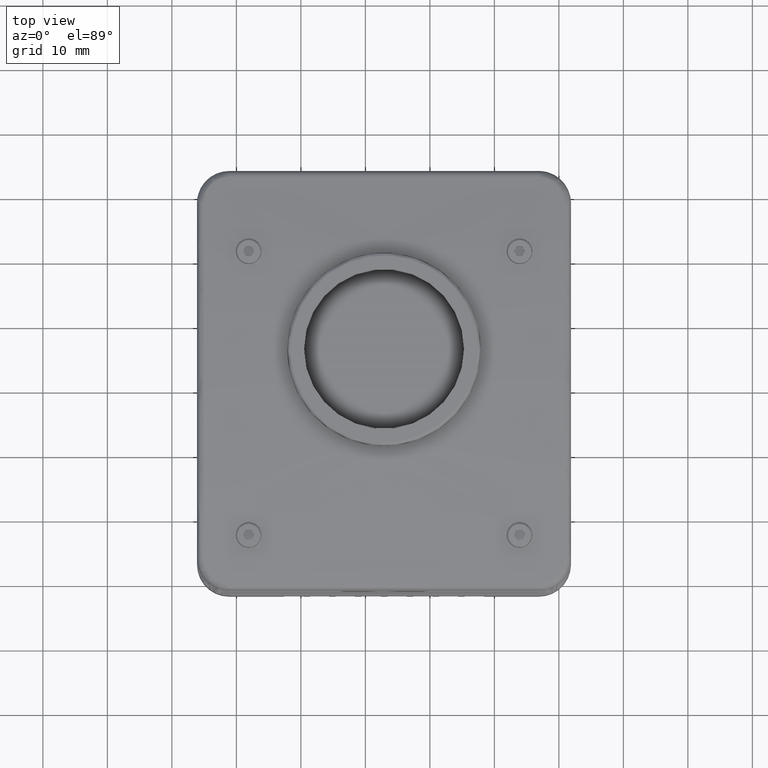
[diagram: clean part render]
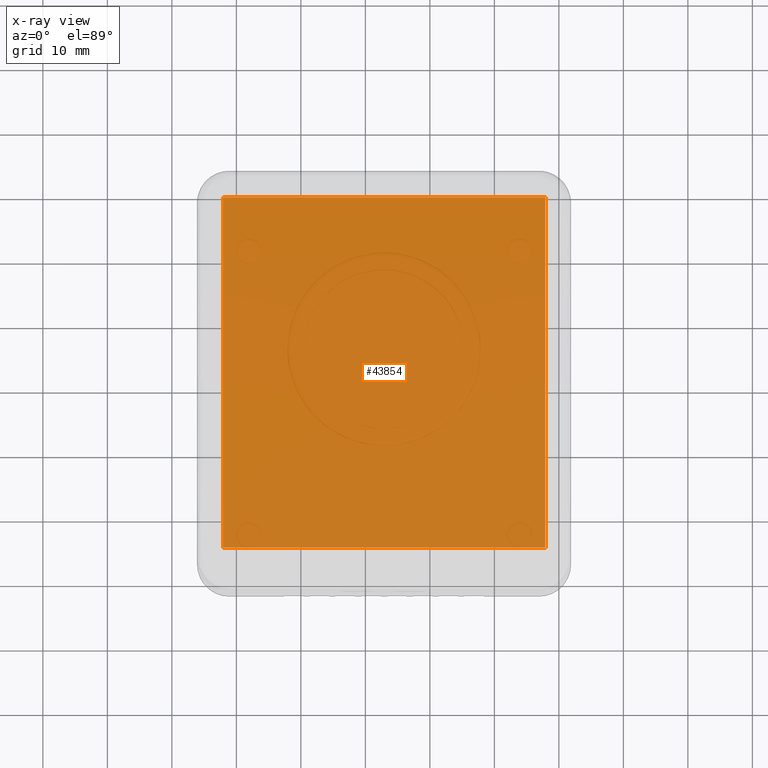
[diagram: x-ray — body ghosted, one internal face saturated and labeled with its STEP entity id]
A machine part, top view, then the same camera in x-ray: the body is ghosted and one INTERNAL B-rep face — a face not visible from any outside direction — is saturated and labeled: STEP entity #43854.
In plain terms, the highlighted planar face has unit normal (0, 0, -1).
Its self-contained STEP definition (entity closure, byte-faithful):
#1087 = DIRECTION ( 'NONE',  ( -1.000000000000000000, 0.000000000000000000, 0.000000000000000000 ) ) ;
#4782 = VERTEX_POINT ( 'NONE', #32310 ) ;
#4921 = VECTOR ( 'NONE', #30626, 1000.000000000000000 ) ;
#4922 = VERTEX_POINT ( 'NONE', #41691 ) ;
#5357 = ORIENTED_EDGE ( 'NONE', *, *, #14214, .F. ) ;
#10554 = EDGE_CURVE ( 'NONE', #17549, #46997, #54922, .T. ) ;
#14214 = EDGE_CURVE ( 'NONE', #46997, #4922, #45485, .T. ) ;
#17492 = LINE ( 'NONE', #72312, #4921 ) ;
#17549 = VERTEX_POINT ( 'NONE', #56045 ) ;
#18968 = FACE_OUTER_BOUND ( 'NONE', #68915, .T. ) ;
#19739 = PLANE ( 'NONE',  #28073 ) ;
#27914 = ORIENTED_EDGE ( 'NONE', *, *, #73979, .F. ) ;
#28073 = AXIS2_PLACEMENT_3D ( 'NONE', #37241, #55510, #1087 ) ;
#30626 = DIRECTION ( 'NONE',  ( 0.000000000000000000, -1.000000000000000000, 0.000000000000000000 ) ) ;
#31006 = LINE ( 'NONE', #32555, #42981 ) ;
#32310 = CARTESIAN_POINT ( 'NONE',  ( 17.88553785810800179, 29.54657936056899814, -10.49999999999999822 ) ) ;
#32555 = CARTESIAN_POINT ( 'NONE',  ( -7.114462141891999991, 29.54657936056899814, -10.49999999999999822 ) ) ;
#37241 = CARTESIAN_POINT ( 'NONE',  ( -7.114462141891999991, 0.7465793605690000945, -10.49999999999999822 ) ) ;
#41034 = CARTESIAN_POINT ( 'NONE',  ( -7.114462141891999991, -24.75342063943099902, -10.49999999999999822 ) ) ;
#41691 = CARTESIAN_POINT ( 'NONE',  ( -32.11446214189199821, 29.54657936056899814, -10.49999999999999822 ) ) ;
#42981 = VECTOR ( 'NONE', #49249, 1000.000000000000000 ) ;
#43854 = ADVANCED_FACE ( 'NONE', ( #18968 ), #19739, .F. ) ;
#45485 = LINE ( 'NONE', #69707, #58270 ) ;
#46382 = VECTOR ( 'NONE', #65248, 1000.000000000000000 ) ;
#46997 = VERTEX_POINT ( 'NONE', #71937 ) ;
#49249 = DIRECTION ( 'NONE',  ( 1.000000000000000000, 0.000000000000000000, 0.000000000000000000 ) ) ;
#51265 = ORIENTED_EDGE ( 'NONE', *, *, #74221, .F. ) ;
#54922 = LINE ( 'NONE', #41034, #46382 ) ;
#55510 = DIRECTION ( 'NONE',  ( 0.000000000000000000, 0.000000000000000000, -1.000000000000000000 ) ) ;
#56036 = ORIENTED_EDGE ( 'NONE', *, *, #10554, .F. ) ;
#56045 = CARTESIAN_POINT ( 'NONE',  ( 17.88553785810800179, -24.75342063943099902, -10.49999999999999822 ) ) ;
#58270 = VECTOR ( 'NONE', #68925, 1000.000000000000000 ) ;
#65248 = DIRECTION ( 'NONE',  ( -1.000000000000000000, 0.000000000000000000, 0.000000000000000000 ) ) ;
#68915 = EDGE_LOOP ( 'NONE', ( #5357, #56036, #27914, #51265 ) ) ;
#68925 = DIRECTION ( 'NONE',  ( 0.000000000000000000, 1.000000000000000000, 0.000000000000000000 ) ) ;
#69707 = CARTESIAN_POINT ( 'NONE',  ( -32.11446214189199821, 0.7465793605690000945, -10.49999999999999822 ) ) ;
#71937 = CARTESIAN_POINT ( 'NONE',  ( -32.11446214189199821, -24.75342063943099902, -10.49999999999999822 ) ) ;
#72312 = CARTESIAN_POINT ( 'NONE',  ( 17.88553785810800179, 0.7465793605690000945, -10.49999999999999822 ) ) ;
#73979 = EDGE_CURVE ( 'NONE', #4782, #17549, #17492, .T. ) ;
#74221 = EDGE_CURVE ( 'NONE', #4922, #4782, #31006, .T. ) ;